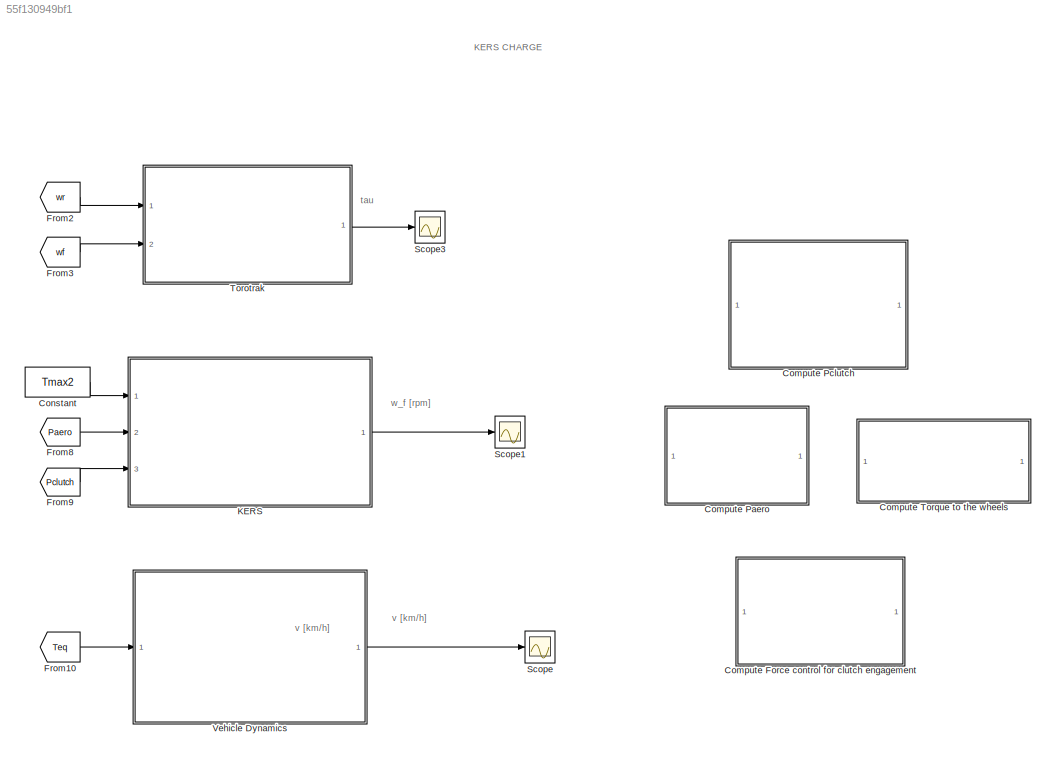
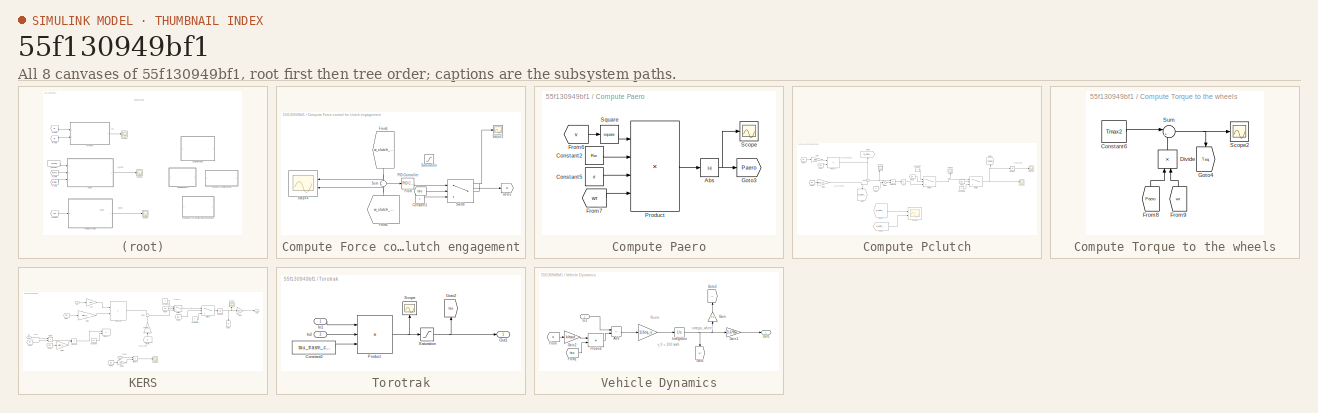
[diagram: thumbnail index - all 8 canvases of the model, root first then tree order]
MODEL slx_55f130949bf1
KIND model
CONFIG AbsTol = auto
CONFIG EnableMultiTasking = off
CONFIG FixedStep = auto
CONFIG MaxStep = auto
CONFIG MinStep = auto
CONFIG RelTol = 1e-3
CONFIG SampleTimeConstraint = Unconstrained
CONFIG Solver = VariableStepAuto
CONFIG SolverName = VariableStepAuto
CONFIG StartTime = 0.0
CONFIG StopTime = 1
BLOCK [SubSystem] Compute Force control for clutch engagement
  Ports = []
  RequestExecContextInheritance = off
BLOCK [Constant] Compute Force control for clutch engagement/Constant1
  SampleTime = -1
  Value = 0
BLOCK [From] Compute Force control for clutch engagement/From
  GotoTag = tau
  TagVisibility = global
BLOCK [From] Compute Force control for clutch engagement/From1
  GotoTag = w_clutch_kers
  NameLocation = left
  TagVisibility = global
BLOCK [From] Compute Force control for clutch engagement/From5
  GotoTag = w_clutch_wheels
  NameLocation = right
  TagVisibility = global
BLOCK [Goto] Compute Force control for clutch engagement/Goto1
  GotoTag = u
  TagVisibility = global
BLOCK [Reference] Compute Force control for clutch engagement/PID Controller  REF=simulink/Continuous/PID Controller
  Ports = [1, 1]
  SourceBlock = simulink/Continuous/PID Controller
  SourceProductBaseCode = SL
  SourceType = PID 1dof
BLOCK [Saturate] Compute Force control for clutch engagement/Saturation
  LowerLimit = -Fn_max
  UpperLimit = Fn_max
BLOCK [Scope] Compute Force control for clutch engagement/Scope2
  Floating = off
  NumInputPorts = 1
  Ports = [1]
  ScopeSpecificationString = Simulink.scopes.TimeScopeBlockCfg('CurrentConfiguration', extmgr.ConfigurationSet(extmgr.Configuration('Core','General UI',true,'FigureColor',[1 1 1]),extmgr.Configuration('Core','Source UI',true),extmgr.Configuration('Sources','WiredSimulink',true,'DataLoggingVariableName','ScopeData1'),extmgr.Configuration('Visuals','Time Domain',true,'SerializedDisplays',{struct('MinYLimReal','-2765.15146','Max...<+2498ch>
BLOCK [Scope] Compute Force control for clutch engagement/Scope4
  Floating = off
  NameLocation = top
  NumInputPorts = 2
  Ports = [2]
  ScopeSpecificationString = Simulink.scopes.TimeScopeBlockCfg('CurrentConfiguration', extmgr.ConfigurationSet(extmgr.Configuration('Core','General UI',true,'FigureColor',[1 1 1]),extmgr.Configuration('Core','Source UI',true),extmgr.Configuration('Sources','WiredSimulink',true,'DataLoggingVariableName','ScopeData2'),extmgr.Configuration('Visuals','Time Domain',true,'SerializedDisplays',{struct('MinYLimReal','-63.26419','MaxYL...<+2540ch>
BLOCK [Sum] Compute Force control for clutch engagement/Sum
  Inputs = -+
  Ports = [2, 1]
BLOCK [Switch] Compute Force control for clutch engagement/Switch
  InputSameDT = off
  SaturateOnIntegerOverflow = off
  Threshold = tau_max
BLOCK [SubSystem] Compute Paero
  Ports = []
  RequestExecContextInheritance = off
BLOCK [Abs] Compute Paero/Abs
  SaturateOnIntegerOverflow = off
  ZeroCross = off
BLOCK [Constant] Compute Paero/Constant2
  Value = Rw
BLOCK [Constant] Compute Paero/Constant5
  Value = d
BLOCK [From] Compute Paero/From6
  GotoTag = v
  TagVisibility = global
BLOCK [From] Compute Paero/From7
  GotoTag = wr
  TagVisibility = global
BLOCK [Goto] Compute Paero/Goto3
  GotoTag = Paero
  TagVisibility = global
BLOCK [Product] Compute Paero/Product
  Inputs = 4
  Ports = [4, 1]
BLOCK [Scope] Compute Paero/Scope
  Floating = off
  NumInputPorts = 1
  Ports = [1]
  ScopeSpecificationString = Simulink.scopes.TimeScopeBlockCfg('CurrentConfiguration', extmgr.ConfigurationSet(extmgr.Configuration('Core','General UI',true),extmgr.Configuration('Core','Source UI',true),extmgr.Configuration('Sources','WiredSimulink',true,'DataLoggingVariableName','ScopeData4'),extmgr.Configuration('Visuals','Time Domain',true,'SerializedDisplays',{struct('MinYLimReal','-10389.58727','MaxYLimReal','94509.0701...<+1419ch>
BLOCK [Math] Compute Paero/Square
  Operator = square
  Ports = [1, 1]
  SignedPower = on
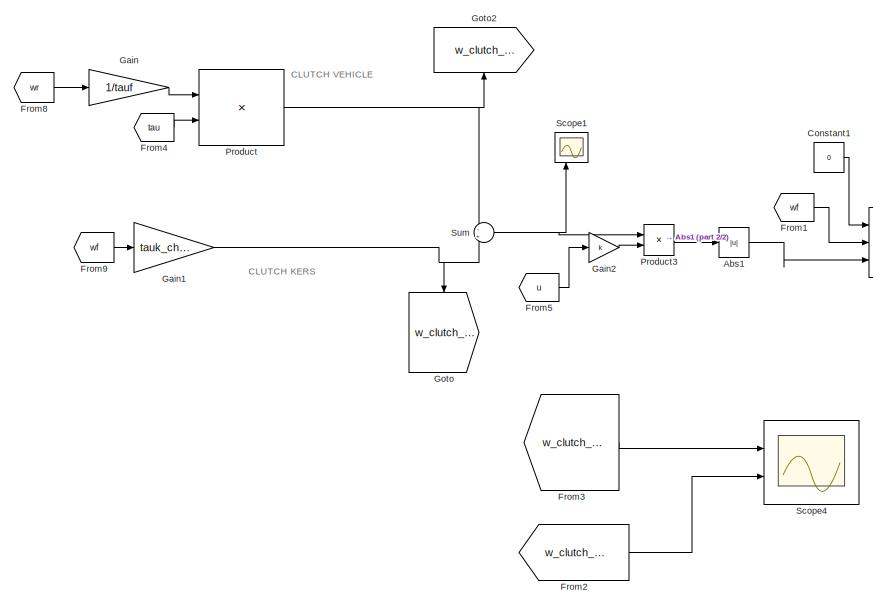
[diagram: Compute Pclutch - part 1/2, left side, full height]
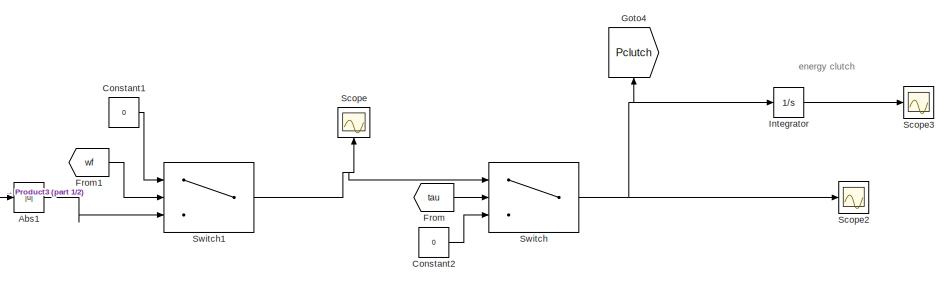
[diagram: Compute Pclutch - part 2/2, top right region]
BLOCK [SubSystem] Compute Pclutch
  Ports = []
  RequestExecContextInheritance = off
BLOCK [Abs] Compute Pclutch/Abs1
  SaturateOnIntegerOverflow = off
  ZeroCross = off
BLOCK [Constant] Compute Pclutch/Constant1
  Value = 0
BLOCK [Constant] Compute Pclutch/Constant2
  Value = 0
BLOCK [From] Compute Pclutch/From
  GotoTag = tau
  TagVisibility = global
BLOCK [From] Compute Pclutch/From1
  GotoTag = wf
  TagVisibility = global
BLOCK [From] Compute Pclutch/From2
  GotoTag = w_clutch_kers
  TagVisibility = global
BLOCK [From] Compute Pclutch/From3
  GotoTag = w_clutch_wheels
  TagVisibility = global
BLOCK [From] Compute Pclutch/From4
  GotoTag = tau
  TagVisibility = global
BLOCK [From] Compute Pclutch/From5
  GotoTag = u
  TagVisibility = global
BLOCK [From] Compute Pclutch/From8
  GotoTag = wr
  TagVisibility = global
BLOCK [From] Compute Pclutch/From9
  GotoTag = wf
  TagVisibility = global
BLOCK [Gain] Compute Pclutch/Gain
  Gain = 1/tauf
BLOCK [Gain] Compute Pclutch/Gain1
  Gain = tauk_charge
BLOCK [Gain] Compute Pclutch/Gain2
  Gain = k
BLOCK [Goto] Compute Pclutch/Goto
  GotoTag = w_clutch_kers
  NameLocation = left
  TagVisibility = global
BLOCK [Goto] Compute Pclutch/Goto2
  GotoTag = w_clutch_wheels
  NameLocation = right
  TagVisibility = global
BLOCK [Goto] Compute Pclutch/Goto4
  GotoTag = Pclutch
  NameLocation = right
  TagVisibility = global
BLOCK [Integrator] Compute Pclutch/Integrator
  Ports = [1, 1]
BLOCK [Product] Compute Pclutch/Product
  Inputs = */
  Ports = [2, 1]
BLOCK [Product] Compute Pclutch/Product3
  Ports = [2, 1]
BLOCK [Scope] Compute Pclutch/Scope
  Floating = off
  NameLocation = right
  NumInputPorts = 1
  Ports = [1]
  ScopeSpecificationString = Simulink.scopes.TimeScopeBlockCfg('CurrentConfiguration', extmgr.ConfigurationSet(extmgr.Configuration('Core','General UI',true),extmgr.Configuration('Core','Source UI',true),extmgr.Configuration('Sources','WiredSimulink',true,'DataLoggingVariableName','ScopeData7'),extmgr.Configuration('Visuals','Time Domain',true,'SerializedDisplays',{struct('MinYLimReal','-3731.9959','MaxYLimReal','732194.83347...<+1504ch>
BLOCK [Scope] Compute Pclutch/Scope1
  Floating = off
  NameLocation = right
  NumInputPorts = 2
  Ports = [2]
  ScopeSpecificationString = Simulink.scopes.TimeScopeBlockCfg('CurrentConfiguration', extmgr.ConfigurationSet(extmgr.Configuration('Core','General UI',true),extmgr.Configuration('Core','Source UI',true),extmgr.Configuration('Sources','WiredSimulink',true,'DataLoggingVariableName','ScopeData5'),extmgr.Configuration('Visuals','Time Domain',true,'SerializedDisplays',{struct('MinYLimReal','-3112.0764','MaxYLimReal','357.17257','...<+2126ch>
BLOCK [Scope] Compute Pclutch/Scope2
  Floating = off
  NumInputPorts = 1
  Ports = [1]
  ScopeSpecificationString = Simulink.scopes.TimeScopeBlockCfg('CurrentConfiguration', extmgr.ConfigurationSet(extmgr.Configuration('Core','General UI',true),extmgr.Configuration('Core','Source UI',true),extmgr.Configuration('Sources','WiredSimulink',true,'DataLoggingVariableName','ScopeData3'),extmgr.Configuration('Visuals','Time Domain',true,'SerializedDisplays',{struct('MinYLimReal','-849247.15653','MaxYLimReal','7643224.4...<+1478ch>
BLOCK [Scope] Compute Pclutch/Scope3
  Floating = off
  NumInputPorts = 1
  Ports = [1]
  ScopeSpecificationString = Simulink.scopes.TimeScopeBlockCfg('CurrentConfiguration', extmgr.ConfigurationSet(extmgr.Configuration('Core','General UI',true),extmgr.Configuration('Core','Source UI',true),extmgr.Configuration('Sources','WiredSimulink',true,'DataLoggingVariableName','ScopeData6'),extmgr.Configuration('Visuals','Time Domain',true,'SerializedDisplays',{struct('MinYLimReal','-2063.77857','MaxYLimReal','18574.00715...<+1422ch>
BLOCK [Scope] Compute Pclutch/Scope4
  Floating = off
  NumInputPorts = 2
  Ports = [2]
  ScopeSpecificationString = Simulink.scopes.TimeScopeBlockCfg('CurrentConfiguration', extmgr.ConfigurationSet(extmgr.Configuration('Core','General UI',true,'FigureColor',[1 1 1]),extmgr.Configuration('Core','Source UI',true),extmgr.Configuration('Sources','WiredSimulink',true,'DataLoggingVariableName','ScopeData2'),extmgr.Configuration('Visuals','Time Domain',true,'SerializedDisplays',{struct('MinYLimReal','-63.26419','MaxYL...<+2508ch>
BLOCK [Sum] Compute Pclutch/Sum
  Inputs = -+
  Ports = [2, 1]
BLOCK [Switch] Compute Pclutch/Switch
  Criteria = u2 > Threshold
  InputSameDT = off
  SaturateOnIntegerOverflow = off
  Threshold = tau_min
BLOCK [Switch] Compute Pclutch/Switch1
  InputSameDT = off
  SaturateOnIntegerOverflow = off
  Threshold = wf_max
BLOCK [SubSystem] Compute Torque to the wheels
  Ports = []
  RequestExecContextInheritance = off
BLOCK [Constant] Compute Torque to the wheels/Constant6
  Value = Tmax2
BLOCK [Product] Compute Torque to the wheels/Divide
  Inputs = */
  NameLocation = right
  Ports = [2, 1]
BLOCK [From] Compute Torque to the wheels/From8
  GotoTag = Paero
  NameLocation = right
  TagVisibility = global
BLOCK [From] Compute Torque to the wheels/From9
  GotoTag = wr
  NameLocation = right
  TagVisibility = global
BLOCK [Goto] Compute Torque to the wheels/Goto4
  GotoTag = Teq
  NameLocation = left
  TagVisibility = global
BLOCK [Scope] Compute Torque to the wheels/Scope2
  Floating = off
  NumInputPorts = 1
  Ports = [1]
  ScopeSpecificationString = Simulink.scopes.TimeScopeBlockCfg('CurrentConfiguration', extmgr.ConfigurationSet(extmgr.Configuration('Core','General UI',true),extmgr.Configuration('Core','Source UI',true),extmgr.Configuration('Sources','WiredSimulink',true,'DataLoggingVariableName','ScopeData2'),extmgr.Configuration('Visuals','Time Domain',true,'SerializedDisplays',{struct('MinYLimReal','-4486.31756','MaxYLimReal','-2755.64197...<+1415ch>
BLOCK [Sum] Compute Torque to the wheels/Sum
  Inputs = |+-
  Ports = [2, 1]
BLOCK [Constant] Constant
  SampleTime = -1
  Value = Tmax2
BLOCK [From] From10
  GotoTag = Teq
  TagVisibility = global
BLOCK [From] From2
  GotoTag = wr
  TagVisibility = global
BLOCK [From] From3
  GotoTag = wf
  TagVisibility = global
BLOCK [From] From8
  GotoTag = Paero
  TagVisibility = global
BLOCK [From] From9
  GotoTag = Pclutch
  TagVisibility = global
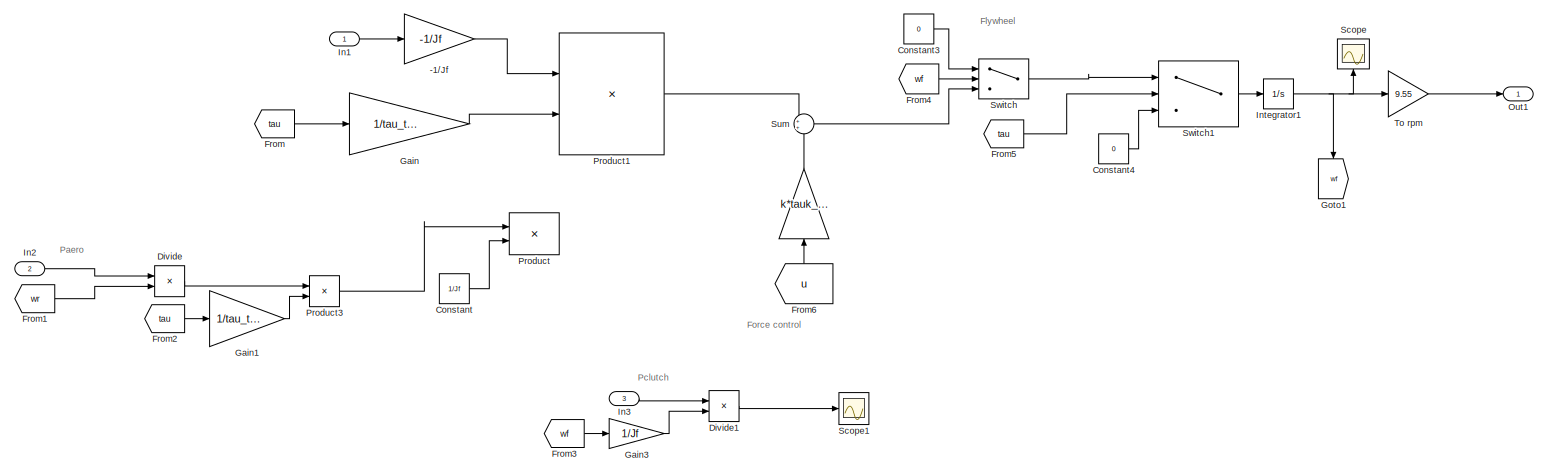
[diagram: KERS - part 1/1, most of the canvas]
BLOCK [SubSystem] KERS
  Ports = [3, 1]
  RequestExecContextInheritance = off
BLOCK [Gain] KERS/ 
  Gain = k*tauk_charge/Jf
  NameLocation = right
BLOCK [Gain] KERS/-1//Jf
  Gain = -1/Jf
BLOCK [Constant] KERS/Constant
  Commented = on
  Value = 1/Jf
BLOCK [Constant] KERS/Constant3
  Value = 0
BLOCK [Constant] KERS/Constant4
  Value = 0
BLOCK [Product] KERS/Divide
  Commented = on
  Inputs = */
  Ports = [2, 1]
BLOCK [Product] KERS/Divide1
  Commented = on
  Inputs = */
  Ports = [2, 1]
BLOCK [From] KERS/From
  GotoTag = tau
  TagVisibility = global
BLOCK [From] KERS/From1
  Commented = on
  GotoTag = wr
  TagVisibility = global
BLOCK [From] KERS/From2
  Commented = on
  GotoTag = tau
  TagVisibility = global
BLOCK [From] KERS/From3
  Commented = on
  GotoTag = wf
  TagVisibility = global
BLOCK [From] KERS/From4
  GotoTag = wf
  TagVisibility = global
BLOCK [From] KERS/From5
  GotoTag = tau
  TagVisibility = global
BLOCK [From] KERS/From6
  GotoTag = u
  NameLocation = right
  TagVisibility = global
BLOCK [Gain] KERS/Gain
  Gain = 1/tau_trasm_charge
BLOCK [Gain] KERS/Gain1
  Commented = on
  Gain = 1/tau_trasm
BLOCK [Gain] KERS/Gain3
  Commented = on
  Gain = 1/Jf
BLOCK [Goto] KERS/Goto1
  GotoTag = wf
  NameLocation = left
  TagVisibility = global
BLOCK [Inport] KERS/In1
BLOCK [Inport] KERS/In2
  Port = 2
BLOCK [Inport] KERS/In3
  Port = 3
BLOCK [Integrator] KERS/Integrator1
  ContinuousStateAttributes = "omega_f"
  InitialCondition = 0.0001
  Ports = [1, 1]
BLOCK [Outport] KERS/Out1
BLOCK [Product] KERS/Product
  Commented = on
  Inputs = **
  Ports = [2, 1]
BLOCK [Product] KERS/Product1
  Inputs = **
  Ports = [2, 1]
BLOCK [Product] KERS/Product3
  Commented = on
  Ports = [2, 1]
BLOCK [Scope] KERS/Scope
  Floating = off
  NameLocation = right
  NumInputPorts = 1
  Ports = [1]
  ScopeSpecificationString = Simulink.scopes.TimeScopeBlockCfg('CurrentConfiguration', extmgr.ConfigurationSet(extmgr.Configuration('Core','General UI',true),extmgr.Configuration('Core','Source UI',true),extmgr.Configuration('Sources','WiredSimulink',true,'DataLoggingVariableName','ScopeData1'),extmgr.Configuration('Visuals','Time Domain',true,'SerializedDisplays',{struct('MinYLimReal','-0.00125','MaxYLimReal','0.01125','YLab...<+1441ch>
BLOCK [Scope] KERS/Scope1
  Commented = on
  Floating = off
  NumInputPorts = 1
  Ports = [1]
  ScopeSpecificationString = Simulink.scopes.TimeScopeBlockCfg('CurrentConfiguration', extmgr.ConfigurationSet(extmgr.Configuration('Core','General UI',true),extmgr.Configuration('Core','Source UI',true),extmgr.Configuration('Sources','WiredSimulink',true,'DataLoggingVariableName','ScopeData1'),extmgr.Configuration('Visuals','Time Domain',true,'SerializedDisplays',{struct('MinYLimReal','-33.96989','MaxYLimReal','305.72897','Y...<+1541ch>
BLOCK [Sum] KERS/Sum
  Ports = [2, 1]
BLOCK [Switch] KERS/Switch
  InputSameDT = off
  SaturateOnIntegerOverflow = off
  Threshold = wf_max
BLOCK [Switch] KERS/Switch1
  Criteria = u2 > Threshold
  InputSameDT = off
  SaturateOnIntegerOverflow = off
  Threshold = tau_min
BLOCK [Gain] KERS/To rpm
  Gain = 9.55
BLOCK [Scope] Scope
  Floating = off
  NumInputPorts = 1
  Ports = [1]
  ScopeSpecificationString = Simulink.scopes.TimeScopeBlockCfg('CurrentConfiguration', extmgr.ConfigurationSet(extmgr.Configuration('Core','General UI',true,'FigureColor',[1 1 1]),extmgr.Configuration('Core','Source UI',true),extmgr.Configuration('Sources','WiredSimulink',true,'DataLoggingVariableName','ScopeData1'),extmgr.Configuration('Visuals','Time Domain',true,'SerializedDisplays',{struct('MinYLimReal','223.57116','MaxYL...<+2505ch>
BLOCK [Scope] Scope1
  Floating = off
  NumInputPorts = 1
  Ports = [1]
  ScopeSpecificationString = Simulink.scopes.TimeScopeBlockCfg('CurrentConfiguration', extmgr.ConfigurationSet(extmgr.Configuration('Core','General UI',true,'FigureColor',[1 1 1]),extmgr.Configuration('Core','Source UI',true),extmgr.Configuration('Sources','WiredSimulink',true,'DataLoggingVariableName','ScopeData1'),extmgr.Configuration('Visuals','Time Domain',true,'SerializedDisplays',{struct('MinYLimReal','-8062.49893','Max...<+1748ch>
BLOCK [Scope] Scope3
  Floating = off
  NumInputPorts = 1
  Ports = [1]
  ScopeSpecificationString = Simulink.scopes.TimeScopeBlockCfg('CurrentConfiguration', extmgr.ConfigurationSet(extmgr.Configuration('Core','General UI',true,'FigureColor',[1 1 1]),extmgr.Configuration('Core','Source UI',true),extmgr.Configuration('Sources','WiredSimulink',true,'DataLoggingVariableName','ScopeData1'),extmgr.Configuration('Visuals','Time Domain',true,'SerializedDisplays',{struct('MinYLimReal','1.58932','MaxYLim...<+1652ch>
BLOCK [SubSystem] Torotrak
  Ports = [2, 1]
  RequestExecContextInheritance = off
BLOCK [Constant] Torotrak/Constant2
  Value = tau_trasm_charge
BLOCK [Goto] Torotrak/Goto2
  GotoTag = tau
  NameLocation = right
  TagVisibility = global
BLOCK [Inport] Torotrak/In1
BLOCK [Inport] Torotrak/In2
  Port = 2
BLOCK [Outport] Torotrak/Out1
BLOCK [Product] Torotrak/Product
  Inputs = */*
  Ports = [3, 1]
BLOCK [Saturate] Torotrak/Saturation
  LowerLimit = tau_min
  UpperLimit = tau_max
BLOCK [Scope] Torotrak/Scope
  Floating = off
  NameLocation = right
  NumInputPorts = 1
  Ports = [1]
  ScopeSpecificationString = Simulink.scopes.TimeScopeBlockCfg('CurrentConfiguration', extmgr.ConfigurationSet(extmgr.Configuration('Core','General UI',true),extmgr.Configuration('Core','Source UI',true),extmgr.Configuration('Sources','WiredSimulink',true,'DataLoggingVariableName','ScopeData3'),extmgr.Configuration('Visuals','Time Domain',true,'SerializedDisplays',{struct('MinYLimReal','-16590907.83969','MaxYLimReal','1493181...<+1495ch>
BLOCK [SubSystem] Vehicle Dynamics
  Ports = [1, 1]
  RequestExecContextInheritance = off
BLOCK [Gain] Vehicle Dynamics/ 
  Gain = 1/Jeq_v
BLOCK [Sum] Vehicle Dynamics/Add
  IconShape = rectangular
  Inputs = +-
  Ports = [2, 1]
BLOCK [From] Vehicle Dynamics/From
  GotoTag = u
  TagVisibility = global
BLOCK [From] Vehicle Dynamics/From1
  GotoTag = tau
  TagVisibility = global
BLOCK [Gain] Vehicle Dynamics/Gain
  Gain = Rw
  NameLocation = right
BLOCK [Gain] Vehicle Dynamics/Gain1
  Gain = 3.6*Rw
BLOCK [Gain] Vehicle Dynamics/Gain2
  Gain = k/tauf
BLOCK [Goto] Vehicle Dynamics/Goto
  GotoTag = wr
  NameLocation = left
  TagVisibility = global
BLOCK [Goto] Vehicle Dynamics/Goto2
  GotoTag = v
  NameLocation = right
  TagVisibility = global
BLOCK [Inport] Vehicle Dynamics/In1
BLOCK [Integrator] Vehicle Dynamics/Integrator
  ContinuousStateAttributes = 'omega_w'
  InitialCondition = 300/(3.6*Rw)
  NameLocation = top
  Ports = [1, 1]
BLOCK [Outport] Vehicle Dynamics/Out1
BLOCK [Product] Vehicle Dynamics/Product
  Inputs = */
  Ports = [2, 1]
ANNOTATION (root): KERS CHARGE
ANNOTATION (root): tau
ANNOTATION (root): v [km/h]
ANNOTATION (root): w_f [rpm]
ANNOTATION Compute Pclutch: CLUTCH KERS
ANNOTATION Compute Pclutch: CLUTCH VEHICLE
ANNOTATION Compute Pclutch: energy clutch
ANNOTATION KERS: Force control
ANNOTATION KERS: Flywheel
ANNOTATION KERS: Paero
ANNOTATION KERS: Pclutch
ANNOTATION Vehicle Dynamics: Ruote
ANNOTATION Vehicle Dynamics: omega_wheel
ANNOTATION Vehicle Dynamics: v_0 = 200 km/h
LINE Compute Force control for clutch engagement/Constant1:1 -> Compute Force control for clutch engagement/Switch:3
NET Compute Force control for clutch engagement/From1:1 -> Compute Force control for clutch engagement/Scope4:1, Compute Force control for clutch engagement/Sum:1
NET Compute Force control for clutch engagement/From5:1 -> Compute Force control for clutch engagement/Scope4:2, Compute Force control for clutch engagement/Sum:2
LINE Compute Force control for clutch engagement/From:1 -> Compute Force control for clutch engagement/Switch:2
LINE Compute Force control for clutch engagement/PID Controller:1 -> Compute Force control for clutch engagement/Switch:1
LINE Compute Force control for clutch engagement/Sum:1 -> Compute Force control for clutch engagement/PID Controller:1
NET Compute Force control for clutch engagement/Switch:1 -> Compute Force control for clutch engagement/Goto1:1, Compute Force control for clutch engagement/Scope2:1
NET Compute Paero/Abs:1 -> Compute Paero/Goto3:1, Compute Paero/Scope:1
LINE Compute Paero/Constant2:1 -> Compute Paero/Product:2
LINE Compute Paero/Constant5:1 -> Compute Paero/Product:3
LINE Compute Paero/From6:1 -> Compute Paero/Square:1
LINE Compute Paero/From7:1 -> Compute Paero/Product:4
LINE Compute Paero/Product:1 -> Compute Paero/Abs:1
LINE Compute Paero/Square:1 -> Compute Paero/Product:1
LINE Compute Pclutch/Abs1:1 -> Compute Pclutch/Switch1:3
LINE Compute Pclutch/Constant1:1 -> Compute Pclutch/Switch1:1
LINE Compute Pclutch/Constant2:1 -> Compute Pclutch/Switch:3
LINE Compute Pclutch/From1:1 -> Compute Pclutch/Switch1:2
LINE Compute Pclutch/From2:1 -> Compute Pclutch/Scope4:2
LINE Compute Pclutch/From3:1 -> Compute Pclutch/Scope4:1
LINE Compute Pclutch/From4:1 -> Compute Pclutch/Product:2
LINE Compute Pclutch/From5:1 -> Compute Pclutch/Gain2:1
LINE Compute Pclutch/From8:1 -> Compute Pclutch/Gain:1
LINE Compute Pclutch/From9:1 -> Compute Pclutch/Gain1:1
LINE Compute Pclutch/From:1 -> Compute Pclutch/Switch:2
NET Compute Pclutch/Gain1:1 -> Compute Pclutch/Goto:1, Compute Pclutch/Sum:2
LINE Compute Pclutch/Gain2:1 -> Compute Pclutch/Product3:2
LINE Compute Pclutch/Gain:1 -> Compute Pclutch/Product:1
LINE Compute Pclutch/Integrator:1 -> Compute Pclutch/Scope3:1
LINE Compute Pclutch/Product3:1 -> Compute Pclutch/Abs1:1
NET Compute Pclutch/Product:1 -> Compute Pclutch/Goto2:1, Compute Pclutch/Sum:1
NET Compute Pclutch/Sum:1 -> Compute Pclutch/Product3:1, Compute Pclutch/Scope1:1
NET Compute Pclutch/Switch1:1 -> Compute Pclutch/Scope:1, Compute Pclutch/Switch:1
NET Compute Pclutch/Switch:1 -> Compute Pclutch/Goto4:1, Compute Pclutch/Integrator:1, Compute Pclutch/Scope2:1
LINE Compute Torque to the wheels/Constant6:1 -> Compute Torque to the wheels/Sum:1
LINE Compute Torque to the wheels/Divide:1 -> Compute Torque to the wheels/Sum:2
LINE Compute Torque to the wheels/From8:1 -> Compute Torque to the wheels/Divide:1
LINE Compute Torque to the wheels/From9:1 -> Compute Torque to the wheels/Divide:2
NET Compute Torque to the wheels/Sum:1 -> Compute Torque to the wheels/Goto4:1, Compute Torque to the wheels/Scope2:1
LINE Constant:1 -> KERS:1
LINE From10:1 -> Vehicle Dynamics:1
LINE From2:1 -> Torotrak:1
LINE From3:1 -> Torotrak:2
LINE From8:1 -> KERS:2
LINE From9:1 -> KERS:3
LINE KERS/ :1 -> KERS/Sum:2
LINE KERS/-1//Jf:1 -> KERS/Product1:1
LINE KERS/Constant3:1 -> KERS/Switch:1
LINE KERS/Constant4:1 -> KERS/Switch1:3
LINE KERS/Constant:1 -> KERS/Product:2
LINE KERS/Divide1:1 -> KERS/Scope1:1
LINE KERS/Divide:1 -> KERS/Product3:1
LINE KERS/From1:1 -> KERS/Divide:2
LINE KERS/From2:1 -> KERS/Gain1:1
LINE KERS/From3:1 -> KERS/Gain3:1
LINE KERS/From4:1 -> KERS/Switch:2
LINE KERS/From5:1 -> KERS/Switch1:2
LINE KERS/From6:1 -> KERS/ :1
LINE KERS/From:1 -> KERS/Gain:1
LINE KERS/Gain1:1 -> KERS/Product3:2
LINE KERS/Gain3:1 -> KERS/Divide1:2
LINE KERS/Gain:1 -> KERS/Product1:2
LINE KERS/In1:1 -> KERS/-1//Jf:1
LINE KERS/In2:1 -> KERS/Divide:1
LINE KERS/In3:1 -> KERS/Divide1:1
NET KERS/Integrator1:1 -> KERS/Goto1:1, KERS/Scope:1, KERS/To rpm:1
LINE KERS/Product1:1 -> KERS/Sum:1
LINE KERS/Product3:1 -> KERS/Product:1
LINE KERS/Sum:1 -> KERS/Switch:3
LINE KERS/Switch1:1 -> KERS/Integrator1:1
LINE KERS/Switch:1 -> KERS/Switch1:1
LINE KERS/To rpm:1 -> KERS/Out1:1
LINE KERS:1 -> Scope1:1
LINE Torotrak/Constant2:1 -> Torotrak/Product:3
LINE Torotrak/In1:1 -> Torotrak/Product:1
LINE Torotrak/In2:1 -> Torotrak/Product:2
NET Torotrak/Product:1 -> Torotrak/Saturation:1, Torotrak/Scope:1
NET Torotrak/Saturation:1 -> Torotrak/Goto2:1, Torotrak/Out1:1
LINE Torotrak:1 -> Scope3:1
LINE Vehicle Dynamics/ :1 -> Vehicle Dynamics/Integrator:1
LINE Vehicle Dynamics/Add:1 -> Vehicle Dynamics/ :1
LINE Vehicle Dynamics/From1:1 -> Vehicle Dynamics/Product:2
LINE Vehicle Dynamics/From:1 -> Vehicle Dynamics/Gain2:1
LINE Vehicle Dynamics/Gain1:1 -> Vehicle Dynamics/Out1:1
LINE Vehicle Dynamics/Gain2:1 -> Vehicle Dynamics/Product:1
LINE Vehicle Dynamics/Gain:1 -> Vehicle Dynamics/Goto2:1
LINE Vehicle Dynamics/In1:1 -> Vehicle Dynamics/Add:1
NET Vehicle Dynamics/Integrator:1 -> Vehicle Dynamics/Gain1:1, Vehicle Dynamics/Gain:1, Vehicle Dynamics/Goto:1
LINE Vehicle Dynamics/Product:1 -> Vehicle Dynamics/Add:2
LINE Vehicle Dynamics:1 -> Scope:1
note: NET lines group one-source signal fan-out (src -> all destinations, sorted); 1:1 wires keep LINE
